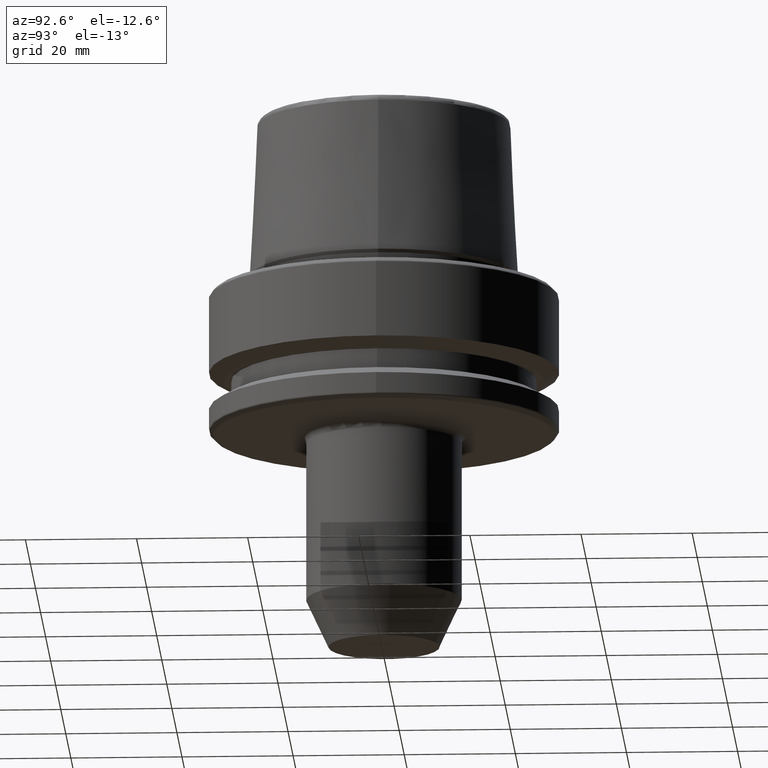
[diagram: clean part render]
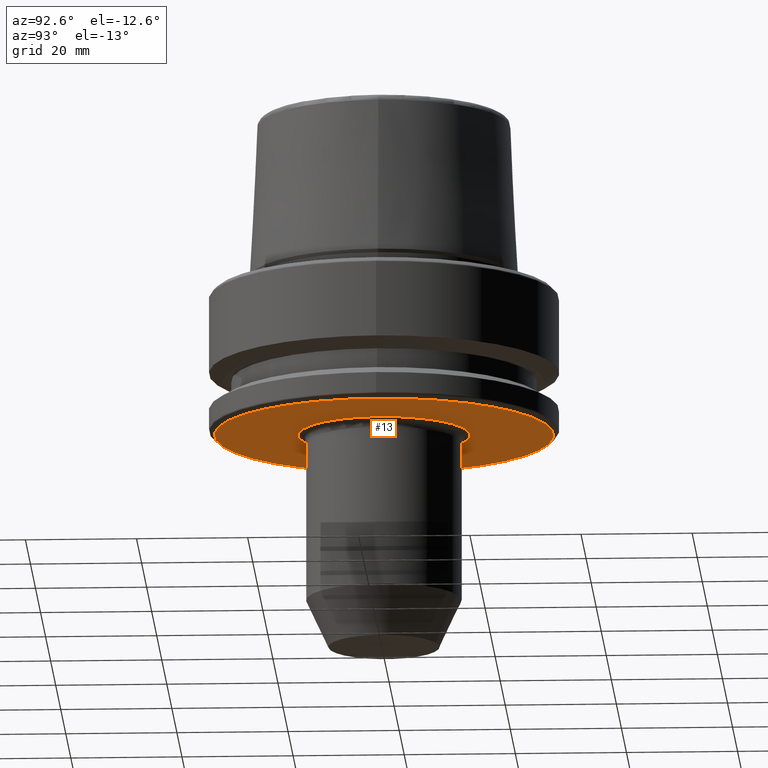
[diagram: same view with one face highlighted and labeled with its STEP entity id]
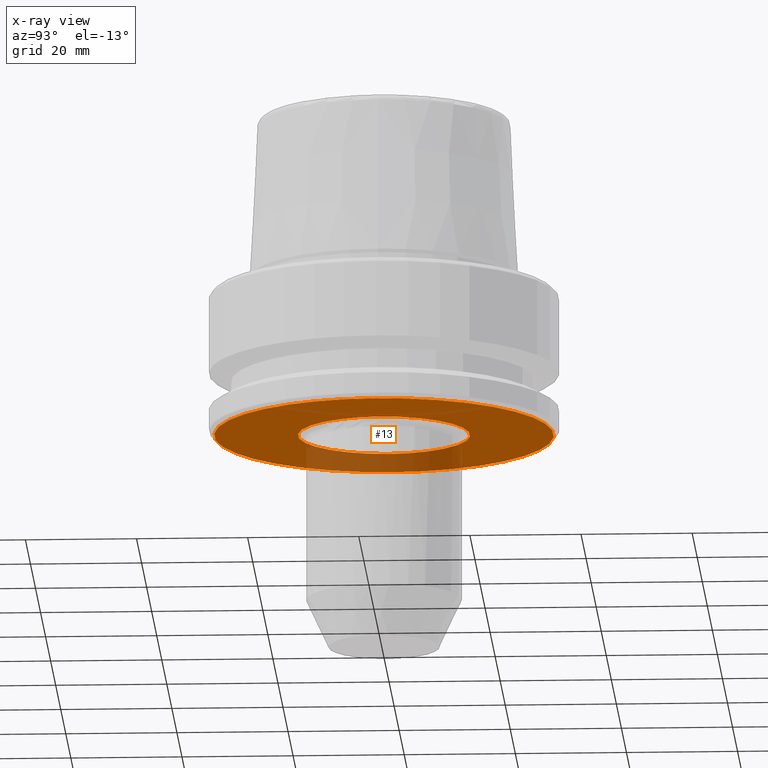
[diagram: x-ray of the same camera — body ghosted, the highlighted face saturated]
A machine part, auxiliary view. The second image highlights one B-rep face of the part: STEP entity #13.
The next image is the same camera in x-ray: the body ghosted, the highlighted face saturated — about 21% of this face is hidden behind the body in this view.
In plain terms, the highlighted planar face has unit normal (0, -0, 1).
Its self-contained STEP definition (entity closure, byte-faithful):
#13 = ADVANCED_FACE ( 'NONE', ( #731, #659 ), #917, .F. ) ;
#87 = DIRECTION ( 'NONE',  ( 1.000000000000000000, 0.0000000000000000000, 0.0000000000000000000 ) ) ;
#95 = CARTESIAN_POINT ( 'NONE',  ( 0.0000000000000000000, 0.0000000000000000000, -26.00000000000001100 ) ) ;
#99 = ORIENTED_EDGE ( 'NONE', *, *, #650, .T. ) ;
#101 = AXIS2_PLACEMENT_3D ( 'NONE', #95, #429, #749 ) ;
#150 = VERTEX_POINT ( 'NONE', #732 ) ;
#158 = EDGE_CURVE ( 'NONE', #555, #150, #1066, .T. ) ;
#187 = DIRECTION ( 'NONE',  ( 1.000000000000000000, 0.0000000000000000000, 0.0000000000000000000 ) ) ;
#209 = AXIS2_PLACEMENT_3D ( 'NONE', #482, #1151, #573 ) ;
#240 = CARTESIAN_POINT ( 'NONE',  ( -15.50000000000000200, 1.733346238793176700E-015, -26.00000000000001100 ) ) ;
#297 = ORIENTED_EDGE ( 'NONE', *, *, #626, .F. ) ;
#395 = VERTEX_POINT ( 'NONE', #240 ) ;
#429 = DIRECTION ( 'NONE',  ( -0.0000000000000000000, -0.0000000000000000000, 1.000000000000000000 ) ) ;
#482 = CARTESIAN_POINT ( 'NONE',  ( 0.0000000000000000000, -1.648562998852209200E-016, -26.00000000000000700 ) ) ;
#486 = CARTESIAN_POINT ( 'NONE',  ( 30.53431457505076100, 0.0000000000000000000, -26.00000000000001100 ) ) ;
#492 = DIRECTION ( 'NONE',  ( -0.0000000000000000000, -0.0000000000000000000, 1.000000000000000000 ) ) ;
#525 = ORIENTED_EDGE ( 'NONE', *, *, #158, .F. ) ;
#535 = AXIS2_PLACEMENT_3D ( 'NONE', #1137, #1219, #589 ) ;
#555 = VERTEX_POINT ( 'NONE', #486 ) ;
#573 = DIRECTION ( 'NONE',  ( 1.000000000000000000, 0.0000000000000000000, 0.0000000000000000000 ) ) ;
#578 = CARTESIAN_POINT ( 'NONE',  ( 0.0000000000000000000, 0.0000000000000000000, -26.00000000000001100 ) ) ;
#589 = DIRECTION ( 'NONE',  ( 1.000000000000000000, 0.0000000000000000000, 0.0000000000000000000 ) ) ;
#626 = EDGE_CURVE ( 'NONE', #150, #555, #1178, .T. ) ;
#650 = EDGE_CURVE ( 'NONE', #395, #1229, #967, .T. ) ;
#659 = FACE_OUTER_BOUND ( 'NONE', #862, .T. ) ;
#672 = CARTESIAN_POINT ( 'NONE',  ( 0.0000000000000000000, -1.648562998852209200E-016, -26.00000000000000700 ) ) ;
#731 = FACE_BOUND ( 'NONE', #803, .T. ) ;
#732 = CARTESIAN_POINT ( 'NONE',  ( -30.53431457505076100, 3.756694181974138600E-015, -26.00000000000001100 ) ) ;
#746 = AXIS2_PLACEMENT_3D ( 'NONE', #672, #1268, #187 ) ;
#749 = DIRECTION ( 'NONE',  ( 1.000000000000000000, 0.0000000000000000000, 0.0000000000000000000 ) ) ;
#803 = EDGE_LOOP ( 'NONE', ( #1074, #99 ) ) ;
#862 = EDGE_LOOP ( 'NONE', ( #525, #297 ) ) ;
#874 = EDGE_CURVE ( 'NONE', #1229, #395, #891, .T. ) ;
#891 = CIRCLE ( 'NONE', #209, 15.50000000000000200 ) ;
#917 = PLANE ( 'NONE',  #535 ) ;
#967 = CIRCLE ( 'NONE', #746, 15.50000000000000200 ) ;
#1020 = CARTESIAN_POINT ( 'NONE',  ( 15.50000000000000200, -1.648562998852209200E-016, -26.00000000000001100 ) ) ;
#1066 = CIRCLE ( 'NONE', #101, 30.53431457505076100 ) ;
#1074 = ORIENTED_EDGE ( 'NONE', *, *, #874, .T. ) ;
#1137 = CARTESIAN_POINT ( 'NONE',  ( 0.0000000000000000000, 30.53431457505076100, -26.00000000000000700 ) ) ;
#1151 = DIRECTION ( 'NONE',  ( -0.0000000000000000000, -0.0000000000000000000, 1.000000000000000000 ) ) ;
#1178 = CIRCLE ( 'NONE', #1231, 30.53431457505076100 ) ;
#1219 = DIRECTION ( 'NONE',  ( 0.0000000000000000000, -0.0000000000000000000, 1.000000000000000000 ) ) ;
#1229 = VERTEX_POINT ( 'NONE', #1020 ) ;
#1231 = AXIS2_PLACEMENT_3D ( 'NONE', #578, #492, #87 ) ;
#1268 = DIRECTION ( 'NONE',  ( -0.0000000000000000000, -0.0000000000000000000, 1.000000000000000000 ) ) ;